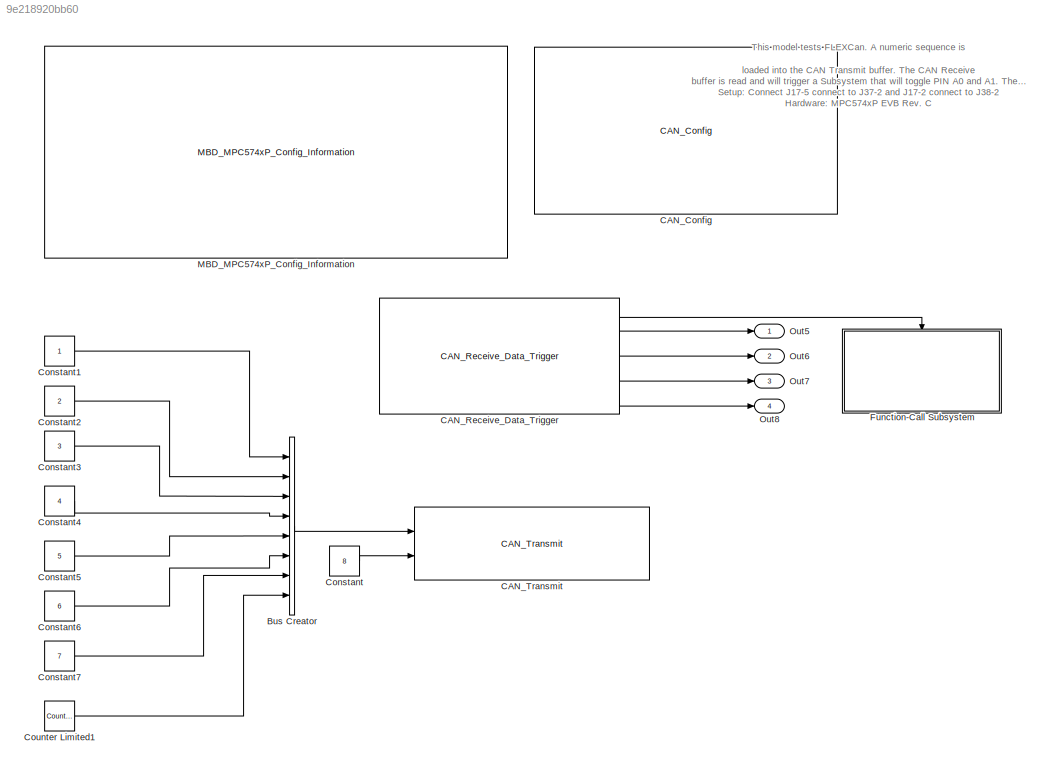
MODEL slx_9e218920bb60
KIND model
CONFIG AbsTol = auto
CONFIG EnableMultiTasking = on
CONFIG FixedStep = auto
CONFIG InitFcn = mbd_pnt_consistency_checks(bdroot(gcs));
CONFIG MaxStep = auto
CONFIG MinStep = auto
CONFIG RelTol = 1e-3
CONFIG SampleTimeConstraint = Unconstrained
CONFIG Solver = FixedStepDiscrete
CONFIG SolverName = FixedStepDiscrete
CONFIG StartTime = 0.0
CONFIG StopTime = 10.0
BLOCK [BusCreator] Bus Creator
  DisplayOption = bar
  InheritFromInputs = on
  Inputs = 8
  Ports = [8, 1]
BLOCK [Reference] CAN_Config  REF=mbd_pnt_ec_toolbox/MPC574xP/Communication Blocks/CAN_Config
  Ports = []
  Priority = 1
  SourceBlock = mbd_pnt_ec_toolbox/MPC574xP/Communication Blocks/CAN_Config
  SourceProductName = Model Based Design Toolbox for MPC574xP
  SourceType = flexcan_pnt_config_block
BLOCK [Reference] CAN_Receive_Data_Trigger  REF=mbd_pnt_ec_toolbox/MPC574xP/Communication Blocks/CAN_Receive_Data_Trigger
  Ports = [0, 5]
  SourceBlock = mbd_pnt_ec_toolbox/MPC574xP/Communication Blocks/CAN_Receive_Data_Trigger
  SourceProductName = Model Based Design Toolbox for MPC574xP
  SourceType = flexcan_pnt_receive_data_trigger_block
BLOCK [Reference] CAN_Transmit  REF=mbd_pnt_ec_toolbox/MPC574xP/Communication Blocks/CAN_Transmit
  Ports = [2]
  SourceBlock = mbd_pnt_ec_toolbox/MPC574xP/Communication Blocks/CAN_Transmit
  SourceProductName = Model Based Design Toolbox for MPC574xP
  SourceType = flexcan_pnt_transmit_block
BLOCK [Constant] Constant
  OutDataTypeStr = uint8
  Value = 8
BLOCK [Constant] Constant1
  OutDataTypeStr = uint8
BLOCK [Constant] Constant2
  OutDataTypeStr = uint8
  Value = 2
BLOCK [Constant] Constant3
  OutDataTypeStr = uint8
  Value = 3
BLOCK [Constant] Constant4
  OutDataTypeStr = uint8
  Value = 4
BLOCK [Constant] Constant5
  OutDataTypeStr = uint8
  Value = 5
BLOCK [Constant] Constant6
  OutDataTypeStr = uint8
  Value = 6
BLOCK [Constant] Constant7
  OutDataTypeStr = uint8
  Value = 7
BLOCK [Reference] Counter Limited1  REF=simulink/Sources/Counter
Limited
  Ports = [0, 1]
  SourceBlock = simulink/Sources/Counter\nLimited
  SourceProductBaseCode = SL
  SourceProductName = Simulink
  SourceType = Counter Limited
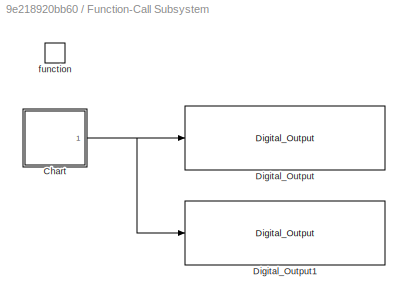
BLOCK [SubSystem] Function-Call Subsystem
  Ports = [0, 0, 0, 1]
  RTWSystemCode = Nonreusable function
  RequestExecContextInheritance = off
  TreatAsAtomicUnit = on
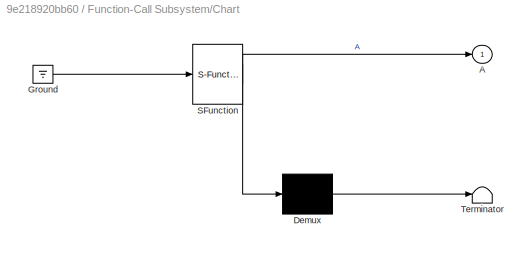
BLOCK [SubSystem] Function-Call Subsystem/Chart
  ErrorFcn = Stateflow.Translate.translate
  PermitHierarchicalResolution = ExplicitOnly
  Ports = [0, 1]
  RTWSystemCode = Reusable function
  RequestExecContextInheritance = off
  SFBlockType = Chart
  TreatAsAtomicUnit = on
BLOCK [Outport] Function-Call Subsystem/Chart/ A
  IconDisplay = Port number
BLOCK [Demux] Function-Call Subsystem/Chart/ Demux 
  Outputs = 1
  Ports = [1, 1]
BLOCK [Ground] Function-Call Subsystem/Chart/ Ground 
BLOCK [S-Function] Function-Call Subsystem/Chart/ SFunction 
  EnableBusSupport = on
  FunctionName = sf_sfun
  PortCounts = [1 2]
  Ports = [1, 2]
  SFcnIsStateOwnerBlock = off
  SFunctionDeploymentMode = off
  Tag = Stateflow S-Function can_model_pnt 1
BLOCK [Terminator] Function-Call Subsystem/Chart/ Terminator 
BLOCK [Reference] Function-Call Subsystem/Digital_Output  REF=mbd_pnt_ec_toolbox/MPC574xP/Peripheral Interface Blocks/Digital_Output
  Ports = [1]
  SourceBlock = mbd_pnt_ec_toolbox/MPC574xP/Peripheral Interface Blocks/Digital_Output
  SourceProductName = Model Based Design Toolbox for MPC574xP
  SourceType = GPIO_PNT_Output
BLOCK [Reference] Function-Call Subsystem/Digital_Output1  REF=mbd_pnt_ec_toolbox/MPC574xP/Peripheral Interface Blocks/Digital_Output
  Ports = [1]
  SourceBlock = mbd_pnt_ec_toolbox/MPC574xP/Peripheral Interface Blocks/Digital_Output
  SourceProductName = Model Based Design Toolbox for MPC574xP
  SourceType = GPIO_PNT_Output
BLOCK [TriggerPort] Function-Call Subsystem/function
  Ports = []
  StatesWhenEnabling = held
  TriggerType = function-call
  VariantControl = (inherit)
BLOCK [Reference] MBD_MPC574xP_Config_Information  REF=mbd_pnt_ec_toolbox/MPC574xP/MBD_MPC574xP_Config_Information
  Ports = []
  SourceBlock = mbd_pnt_ec_toolbox/MPC574xP/MBD_MPC574xP_Config_Information
  SourceProductName = Model Based Design Toolbox for MPC574xP
  SourceType = MBDTBX_EC_PNT
BLOCK [Outport] Out5
  IconDisplay = Port number
BLOCK [Outport] Out6
  IconDisplay = Port number
  Port = 2
BLOCK [Outport] Out7
  IconDisplay = Port number
  Port = 3
BLOCK [Outport] Out8
  IconDisplay = Port number
  Port = 4
ANNOTATION (root): This model tests FLEXCan. A numeric sequence is loaded into the CAN Transmit buffer. The CAN Receive buffer is read and will trigger a Subsystem that will toggle PIN A0 and A1. The CAN traffic can be used observed using USB to CAN device that can be connected to board CAN port J6. Setup: Connect J 17-5 connect to J37-2 and J 17-2 connect to J38-2 Hardware: MPC574xP EVB Rev. C
LINE Bus Creator:1 -> CAN_Transmit:1
LINE CAN_Receive_Data_Trigger:1 -> Function-Call Subsystem:trigger
LINE CAN_Receive_Data_Trigger:2 -> Out5:1
LINE CAN_Receive_Data_Trigger:3 -> Out6:1
LINE CAN_Receive_Data_Trigger:4 -> Out7:1
LINE CAN_Receive_Data_Trigger:5 -> Out8:1
LINE Constant1:1 -> Bus Creator:1
LINE Constant2:1 -> Bus Creator:2
LINE Constant3:1 -> Bus Creator:3
LINE Constant4:1 -> Bus Creator:4
LINE Constant5:1 -> Bus Creator:5
LINE Constant6:1 -> Bus Creator:6
LINE Constant7:1 -> Bus Creator:7
LINE Constant:1 -> CAN_Transmit:2
LINE Counter Limited1:1 -> Bus Creator:8
NET Function-Call Subsystem/Chart:1 -> Function-Call Subsystem/Digital_Output1:1, Function-Call Subsystem/Digital_Output:1
note: NET lines group one-source signal fan-out (src -> all destinations, sorted); 1:1 wires keep LINE
CHART Function-Call
Subsystem/Chart states=2 transitions=3
  STATE_LABEL 'A'
  STATE_LABEL 'A1'
